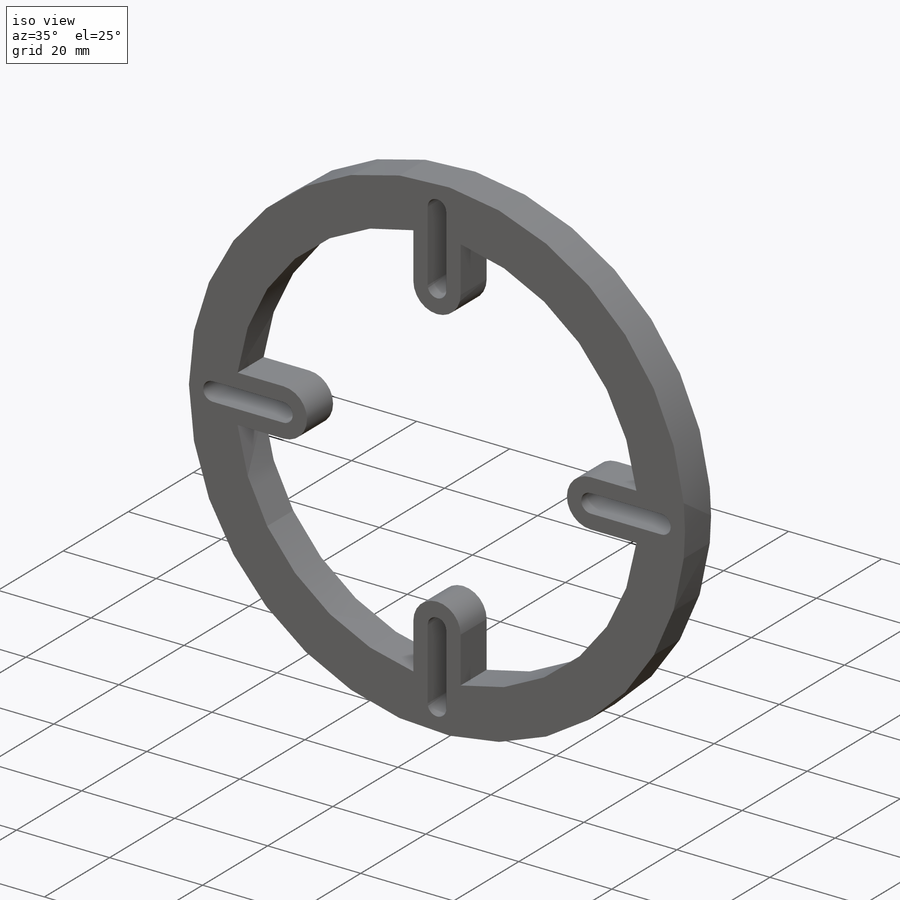
[diagram: iso view]
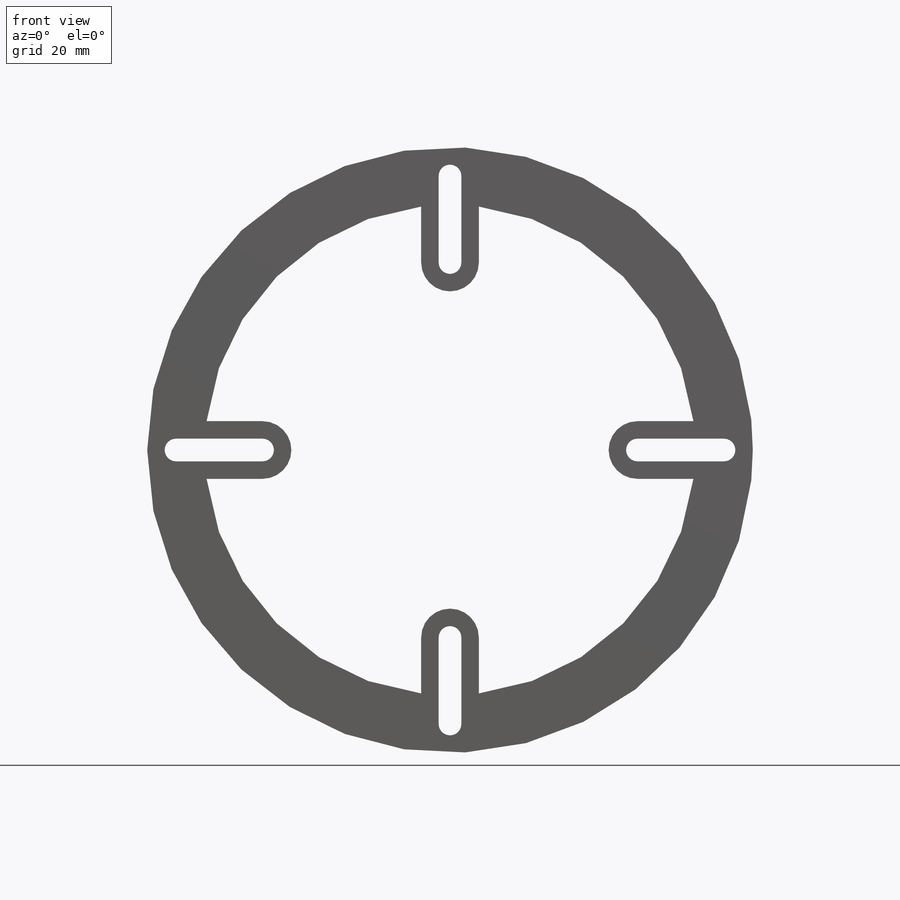
[diagram: front view]
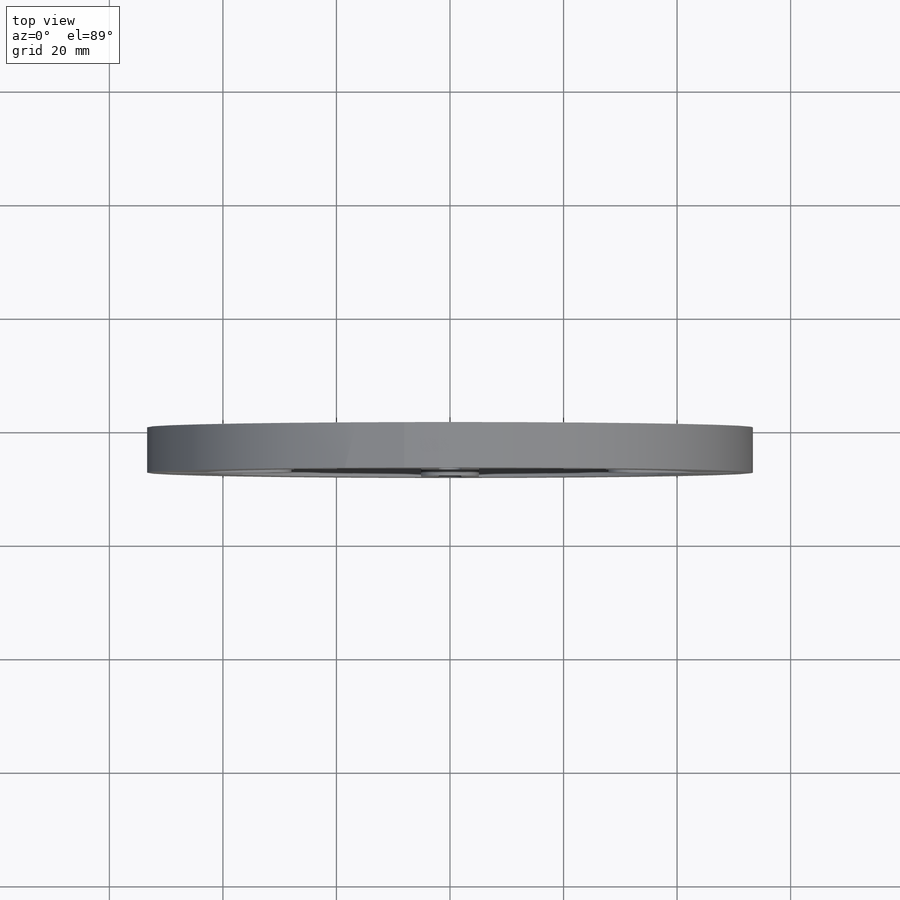
[diagram: top view]
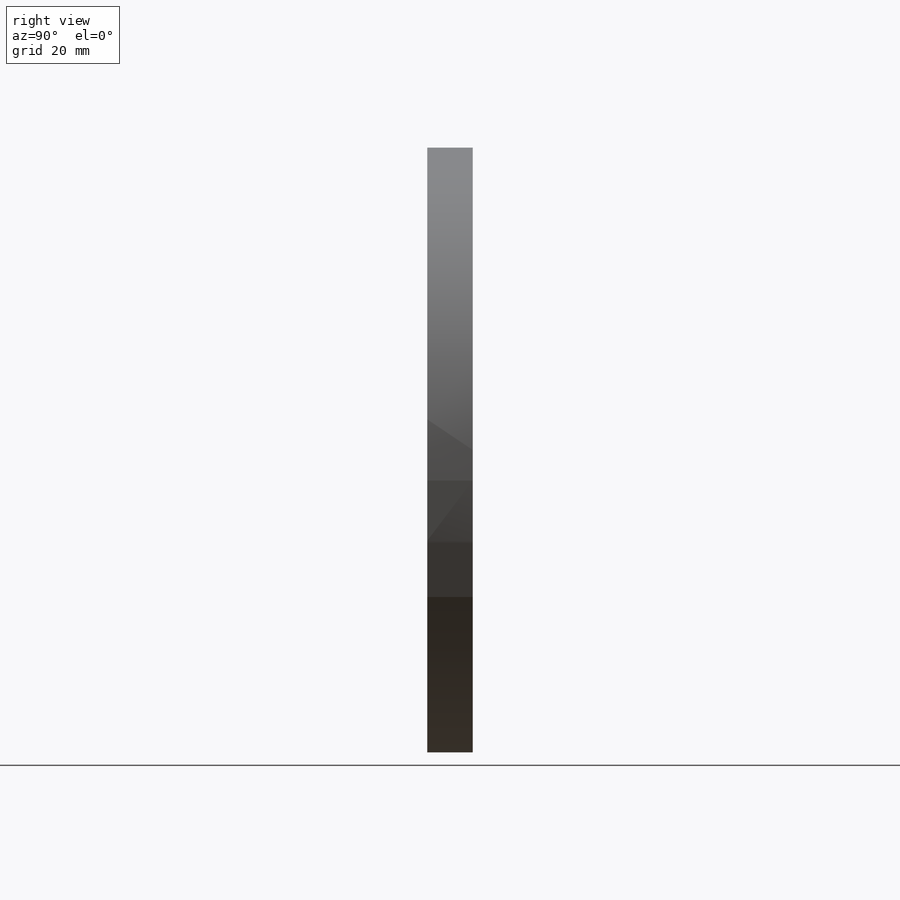
[diagram: right view]
SOLIDWORKS PART (.sldprt)
format: sldprt  version: not decoded by parser v0  size: 286,720 bytes
history: native  units: mm
features: sketch x5, mirror x4, plane x3, extrude x3, cut_extrude x2, material x1 + 1 further entry (+7 scaffold rows collapsed)
feature tree (26):
  scaffold x7  (default folders/planes/origin — collapsed)
  material  "Material <not specified>"
  plane  "정면"
  plane  "윗면"
  plane  "우측면"
  "원점"
  sketch  "Sketch2"  dims[D1=106.68mm D2=10.16mm]
  extrude  "Extrude3"  Depth=8mm
  sketch  "Sketch3"  dims[c1.D2=10.0mm c1.D3=10.16mm c1.D1=15.24mm c2.D2=20.0mm]
  extrude  "Extrude4"  Depth=8mm
  mirror  "Mirror1"
  sketch  "Sketch4"  dims[D2=10.0mm D4=10.16mm D1=15.24mm D3=20.32mm]
  extrude  "Extrude5"  Depth=8mm
  mirror  "Mirror2"
  sketch  "Sketch5"  dims[D1=4.0mm D3=4.0mm D2=15.24mm]
  cut_extrude  "Cut-Extrude1"  [1 undecoded]
  mirror  "Mirror3"
  sketch  "Sketch6"  dims[D1=4.0mm D3=4.0mm D2=15.24mm]
  cut_extrude  "Cut-Extrude2"  [1 undecoded]
  mirror  "Mirror4"
decode coverage: 8 of 14 modeling features carry decoded parameters; 1 rows unclassified (native names shown)
note: 2 parameter values undecoded
note: suppression state not decoded; provenance and decode notes live in map.json
